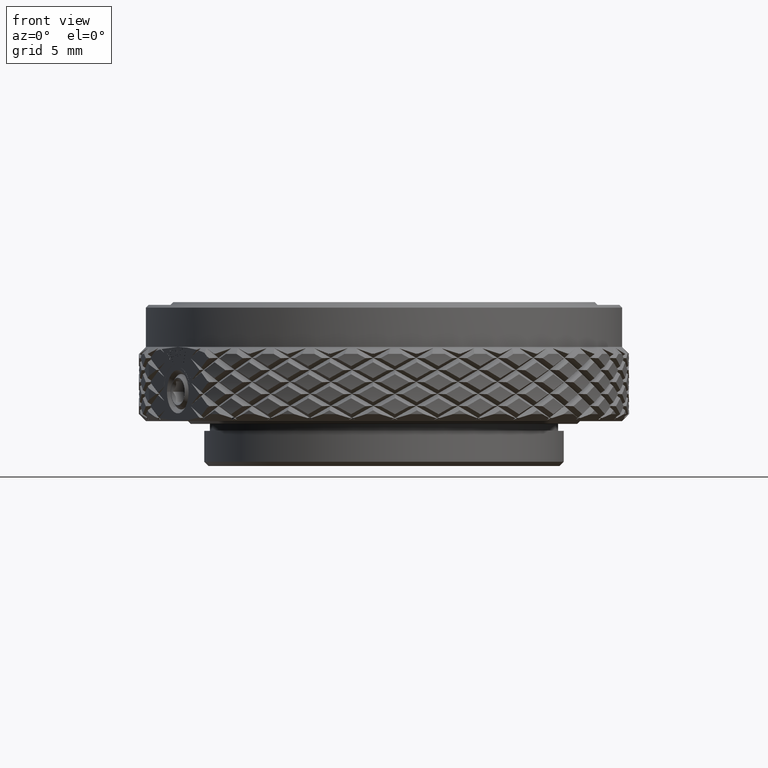
[diagram: clean part render]
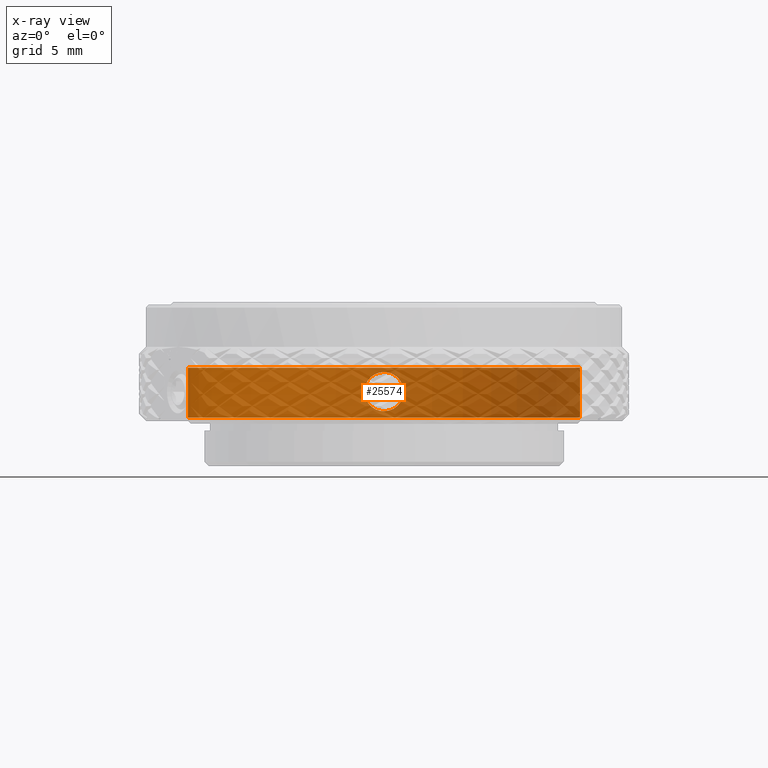
[diagram: x-ray — body ghosted, one internal face saturated and labeled with its STEP entity id]
A machine part, front view, then the same camera in x-ray: the body is ghosted and one INTERNAL B-rep face — a face not visible from any outside direction — is saturated and labeled: STEP entity #25574.
In plain terms, the highlighted cylindrical surface (partial cylindrical patch) has radius 14 mm, axis along (-0, -0, -1).
Its self-contained STEP definition (entity closure, byte-faithful):
#695 = CARTESIAN_POINT ( 'NONE',  ( -1.223401601134245453, 13.94662169316158007, 4.595038967953184006 ) ) ;
#916 = ORIENTED_EDGE ( 'NONE', *, *, #39690, .T. ) ;
#1126 = CARTESIAN_POINT ( 'NONE',  ( -0.3667787396618209517, 13.99622291936801055, 6.663508987545344375 ) ) ;
#1334 = CYLINDRICAL_SURFACE ( 'NONE', #73842, 14.00000000000000000 ) ;
#1555 = CARTESIAN_POINT ( 'NONE',  ( -1.328676748896372661, 13.93685259050255176, 4.849402085521040462 ) ) ;
#2879 = ORIENTED_EDGE ( 'NONE', *, *, #69573, .T. ) ;
#3702 = CARTESIAN_POINT ( 'NONE',  ( -7.872396345179647841E-15, 13.99999999999997868, 3.900000000000000799 ) ) ;
#4980 = CARTESIAN_POINT ( 'NONE',  ( -0.1851269892940709816, 13.99999999999998757, 6.700000000000001066 ) ) ;
#5567 = CARTESIAN_POINT ( 'NONE',  ( 0.7039974019825807616, 13.98330494381989908, 4.076218605779872384 ) ) ;
#6407 = CARTESIAN_POINT ( 'NONE',  ( -8.060609225509696426E-15, 13.99999999999997868, 6.700000000000001066 ) ) ;
#7962 = CARTESIAN_POINT ( 'NONE',  ( -1.399933571107917052, 13.92983079584707085, 5.483261077282068463 ) ) ;
#8770 = CARTESIAN_POINT ( 'NONE',  ( 13.99999999999999112, -1.882922512827253915E-14, 11.50000000000000000 ) ) ;
#9872 = DIRECTION ( 'NONE',  ( -0.000000000000000000, -0.000000000000000000, -1.000000000000000000 ) ) ;
#11165 = CARTESIAN_POINT ( 'NONE',  ( 1.363820542079124065, 13.93359109820536545, 5.665632783349391133 ) ) ;
#12011 = CARTESIAN_POINT ( 'NONE',  ( -8.060609225509696426E-15, 13.99999999999997868, 6.700000000000001066 ) ) ;
#12019 = CARTESIAN_POINT ( 'NONE',  ( 1.258553559625531504, 13.94335988125888370, 5.920053536695099261 ) ) ;
#12037 = AXIS2_PLACEMENT_3D ( 'NONE', #23258, #82575, #42092 ) ;
#12078 = VERTEX_POINT ( 'NONE', #77786 ) ;
#12874 = CARTESIAN_POINT ( 'NONE',  ( 1.390784842360060169, 13.93075875460358581, 5.115492991360096831 ) ) ;
#13019 = ORIENTED_EDGE ( 'NONE', *, *, #30360, .F. ) ;
#14002 = CARTESIAN_POINT ( 'NONE',  ( -0.7014698870384290519, 13.98262298014766536, 6.515034555895270252 ) ) ;
#14857 = CARTESIAN_POINT ( 'NONE',  ( -0.3637580994429761017, 13.99556143310592837, 3.944987957928954625 ) ) ;
#15273 = CARTESIAN_POINT ( 'NONE',  ( -0.4510393202989255723, 13.99298977733581495, 3.971472188487945143 ) ) ;
#18325 = ORIENTED_EDGE ( 'NONE', *, *, #43684, .T. ) ;
#18445 = CARTESIAN_POINT ( 'NONE',  ( 1.355071514520578058, 13.93427799160178537, 4.936535415053062259 ) ) ;
#18893 = CARTESIAN_POINT ( 'NONE',  ( 1.328055847902409825, 13.93691200980045863, 4.847585282527489881 ) ) ;
#20283 = ORIENTED_EDGE ( 'NONE', *, *, #39225, .F. ) ;
#20878 = CARTESIAN_POINT ( 'NONE',  ( -0.6210737109161809100, 13.98647429156955013, 6.558049401396871758 ) ) ;
#21474 = FACE_BOUND ( 'NONE', #73076, .T. ) ;
#22303 = DIRECTION ( 'NONE',  ( -1.000000000000000000, 0.000000000000000000, 0.000000000000000000 ) ) ;
#23258 = CARTESIAN_POINT ( 'NONE',  ( -8.043846907927924015E-15, -2.054373064707883438E-14, 7.000000000000000000 ) ) ;
#23914 = B_SPLINE_CURVE_WITH_KNOTS ( 'NONE', 3,
 ( #78388, #4980, #1126, #20878, #14002, #28480, #34046, #66835, #60339, #67662, #7962, #72813, #28074, #47838, #1555, #695, #60759, #27671, #80955, #15273, #14857, #54736, #33204, #27242 ),
 .UNSPECIFIED., .F., .F.,
 ( 4, 2, 2, 2, 2, 2, 2, 2, 2, 2, 2, 4 ),
 ( 9.976966100002605606E-20, 0.0005474717109163589881, 0.0008212075663745389701, 0.001094943421832719060, 0.001642415132749080976, 0.002189886843665443325, 0.002463622699123624391, 0.002737358554581805024, 0.003284830265498167156, 0.003832301976414530589, 0.004106037831872712089, 0.004379773687330893589 ),
 .UNSPECIFIED. ) ;
#25246 = CARTESIAN_POINT ( 'NONE',  ( 0.8601308816549687597, 13.97415241073657022, 4.180409325811774934 ) ) ;
#25574 = ADVANCED_FACE ( 'NONE', ( #66605, #21474 ), #1334, .F. ) ;
#27242 = CARTESIAN_POINT ( 'NONE',  ( -7.872396345179647841E-15, 13.99999999999997868, 3.900000000000000799 ) ) ;
#27671 = CARTESIAN_POINT ( 'NONE',  ( -0.8593943882024558389, 13.97421239080524202, 4.179454841581531355 ) ) ;
#28074 = CARTESIAN_POINT ( 'NONE',  ( -1.390914304584762284, 13.93074586954180027, 5.116310075259987933 ) ) ;
#28453 = DIRECTION ( 'NONE',  ( -0.000000000000000000, -0.000000000000000000, -1.000000000000000000 ) ) ;
#28480 = CARTESIAN_POINT ( 'NONE',  ( -0.8536211295823981082, 13.97415959456974832, 6.413418134202867549 ) ) ;
#29010 = CARTESIAN_POINT ( 'NONE',  ( 13.99999999999999112, -1.882922512827253915E-14, 7.000000000000000000 ) ) ;
#30360 = EDGE_CURVE ( 'NONE', #55075, #52527, #23914, .T. ) ;
#31657 = CARTESIAN_POINT ( 'NONE',  ( 1.400141240422248856, 13.92980992430033282, 5.483896339462332570 ) ) ;
#32079 = CARTESIAN_POINT ( 'NONE',  ( 1.055130271809945564, 13.96033238167668067, 6.224678347931039468 ) ) ;
#33204 = CARTESIAN_POINT ( 'NONE',  ( -0.09139948883271804825, 13.99999999999997691, 3.899999999999999911 ) ) ;
#33648 = DIRECTION ( 'NONE',  ( -0.000000000000000000, -0.000000000000000000, -1.000000000000000000 ) ) ;
#33854 = ORIENTED_EDGE ( 'NONE', *, *, #64309, .F. ) ;
#34046 = CARTESIAN_POINT ( 'NONE',  ( -0.9256136296605256275, 13.96951768030429974, 6.354310392664996421 ) ) ;
#37244 = CARTESIAN_POINT ( 'NONE',  ( 0.8616554412754957593, 13.97405704475414012, 6.418422840883120983 ) ) ;
#38258 = CARTESIAN_POINT ( 'NONE',  ( -8.043846907927924015E-15, -2.054373064707883438E-14, 3.450000000000032152 ) ) ;
#38386 = VECTOR ( 'NONE', #33648, 1000.000000000000000 ) ;
#38928 = CARTESIAN_POINT ( 'NONE',  ( 1.114167760552126740, 13.95568775285866536, 6.152637936305062283 ) ) ;
#39225 = EDGE_CURVE ( 'NONE', #52527, #55075, #44420, .T. ) ;
#39690 = EDGE_CURVE ( 'NONE', #51108, #65807, #64217, .T. ) ;
#40504 = CARTESIAN_POINT ( 'NONE',  ( -14.00000000000000888, -2.054373064707883438E-14, 11.50000000000000000 ) ) ;
#42092 = DIRECTION ( 'NONE',  ( 1.000000000000000000, 0.000000000000000000, 0.000000000000000000 ) ) ;
#43684 = EDGE_CURVE ( 'NONE', #65807, #12078, #46139, .T. ) ;
#44420 = B_SPLINE_CURVE_WITH_KNOTS ( 'NONE', 3,
 ( #71672, #51438, #57459, #5567, #25246, #64842, #58761, #51010, #69983, #18893, #18445, #12874, #70816, #31657, #11165, #12019, #57892, #38928, #32079, #37244, #58308, #63555, #65269, #6407 ),
 .UNSPECIFIED., .F., .F.,
 ( 4, 2, 2, 2, 2, 2, 2, 2, 2, 2, 2, 4 ),
 ( 0.004379773687330893589, 0.004927116998145169430, 0.005474460308959444403, 0.005748131964366582324, 0.006021803619773720244, 0.006295475275180857297, 0.006569146930587995217, 0.007116490241402273660, 0.007390161896809414183, 0.007663833552216554705, 0.008211176863030838352, 0.008758520173845119397 ),
 .UNSPECIFIED. ) ;
#46139 = LINE ( 'NONE', #40504, #38386 ) ;
#46566 = CARTESIAN_POINT ( 'NONE',  ( 13.99999999999999112, -1.881391704328319410E-14, 3.450000000000032152 ) ) ;
#47838 = CARTESIAN_POINT ( 'NONE',  ( -1.355138507876798792, 13.93427151698013589, 4.936703680697224428 ) ) ;
#51010 = CARTESIAN_POINT ( 'NONE',  ( 1.214642235183917229, 13.94730248212635715, 4.597854105622787735 ) ) ;
#51108 = VERTEX_POINT ( 'NONE', #29010 ) ;
#51438 = CARTESIAN_POINT ( 'NONE',  ( 0.1827561052997266344, 13.99999999999997691, 3.900000000000000799 ) ) ;
#51616 = DIRECTION ( 'NONE',  ( 1.000000000000000000, 0.000000000000000000, 0.000000000000000000 ) ) ;
#52527 = VERTEX_POINT ( 'NONE', #3702 ) ;
#54285 = LINE ( 'NONE', #8770, #64239 ) ;
#54736 = CARTESIAN_POINT ( 'NONE',  ( -0.1842399048256580241, 13.99907552091288032, 3.909160955919865010 ) ) ;
#55075 = VERTEX_POINT ( 'NONE', #12011 ) ;
#57459 = CARTESIAN_POINT ( 'NONE',  ( 0.3670232301060436519, 13.99620389399993137, 3.936714559822442894 ) ) ;
#57892 = CARTESIAN_POINT ( 'NONE',  ( 1.215607782186952202, 13.94721793670084509, 6.000470533974707976 ) ) ;
#58308 = CARTESIAN_POINT ( 'NONE',  ( 0.7056759116950700461, 13.98321876134808583, 6.522808834121503807 ) ) ;
#58761 = CARTESIAN_POINT ( 'NONE',  ( 1.112970125164937762, 13.95578373965113350, 4.445797379438751307 ) ) ;
#60339 = CARTESIAN_POINT ( 'NONE',  ( -1.223481076611330876, 13.94661290666471665, 6.004520313516811925 ) ) ;
#60759 = CARTESIAN_POINT ( 'NONE',  ( -1.120811892346138094, 13.95567810462050318, 4.440953512023698480 ) ) ;
#62664 = CARTESIAN_POINT ( 'NONE',  ( -8.043846907927924015E-15, -2.054373064707883438E-14, 11.50000000000000000 ) ) ;
#63555 = CARTESIAN_POINT ( 'NONE',  ( 0.3689647143809584584, 13.99615127310381801, 6.662756389342588292 ) ) ;
#64217 = CIRCLE ( 'NONE', #12037, 14.00000000000000000 ) ;
#64239 = VECTOR ( 'NONE', #28453, 1000.000000000000000 ) ;
#64309 = EDGE_CURVE ( 'NONE', #51108, #75658, #54285, .T. ) ;
#64842 = CARTESIAN_POINT ( 'NONE',  ( 1.053840322553044828, 13.96043017809905074, 4.373853317563699328 ) ) ;
#65269 = CARTESIAN_POINT ( 'NONE',  ( 0.1850835709331609402, 13.99999999999998934, 6.700000000000003730 ) ) ;
#65807 = VERTEX_POINT ( 'NONE', #68648 ) ;
#66605 = FACE_OUTER_BOUND ( 'NONE', #77452, .T. ) ;
#66835 = CARTESIAN_POINT ( 'NONE',  ( -1.119198019655238019, 13.95579216812116918, 6.160650785614436131 ) ) ;
#67662 = CARTESIAN_POINT ( 'NONE',  ( -1.363131321078078440, 13.93365675315237695, 5.667597359184994410 ) ) ;
#68648 = CARTESIAN_POINT ( 'NONE',  ( -14.00000000000000888, -2.054373064707883438E-14, 7.000000000000000000 ) ) ;
#69573 = EDGE_CURVE ( 'NONE', #12078, #75658, #71871, .T. ) ;
#69983 = CARTESIAN_POINT ( 'NONE',  ( 1.257683837425615625, 13.94343860276747904, 4.678193939550362224 ) ) ;
#70816 = CARTESIAN_POINT ( 'NONE',  ( 1.399928763998834258, 13.92983127897804430, 5.206443627002864893 ) ) ;
#71672 = CARTESIAN_POINT ( 'NONE',  ( -7.872396345179647841E-15, 13.99999999999997868, 3.900000000000000799 ) ) ;
#71871 = CIRCLE ( 'NONE', #82860, 14.00000000000000000 ) ;
#72813 = CARTESIAN_POINT ( 'NONE',  ( -1.400033076099631346, 13.92982079521978811, 5.209131730965055773 ) ) ;
#73076 = EDGE_LOOP ( 'NONE', ( #13019, #20283 ) ) ;
#73842 = AXIS2_PLACEMENT_3D ( 'NONE', #62664, #9872, #22303 ) ;
#75658 = VERTEX_POINT ( 'NONE', #46566 ) ;
#77452 = EDGE_LOOP ( 'NONE', ( #33854, #916, #18325, #2879 ) ) ;
#77786 = CARTESIAN_POINT ( 'NONE',  ( -14.00000000000000888, -2.054373064707883438E-14, 3.450000000000032152 ) ) ;
#78388 = CARTESIAN_POINT ( 'NONE',  ( -8.060609225509696426E-15, 13.99999999999997868, 6.700000000000001066 ) ) ;
#80955 = CARTESIAN_POINT ( 'NONE',  ( -0.7054002448087014487, 13.98324740548297207, 4.076847943920816064 ) ) ;
#82575 = DIRECTION ( 'NONE',  ( 0.000000000000000000, 0.000000000000000000, 1.000000000000000000 ) ) ;
#82860 = AXIS2_PLACEMENT_3D ( 'NONE', #38258, #83050, #51616 ) ;
#83050 = DIRECTION ( 'NONE',  ( 0.000000000000000000, 0.000000000000000000, -1.000000000000000000 ) ) ;